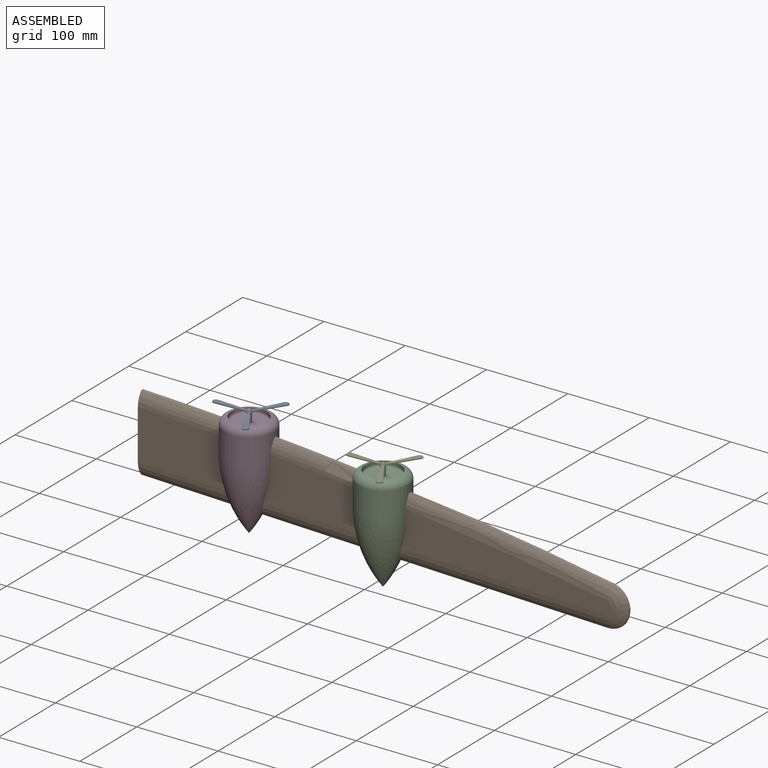
[diagram: assembled view]
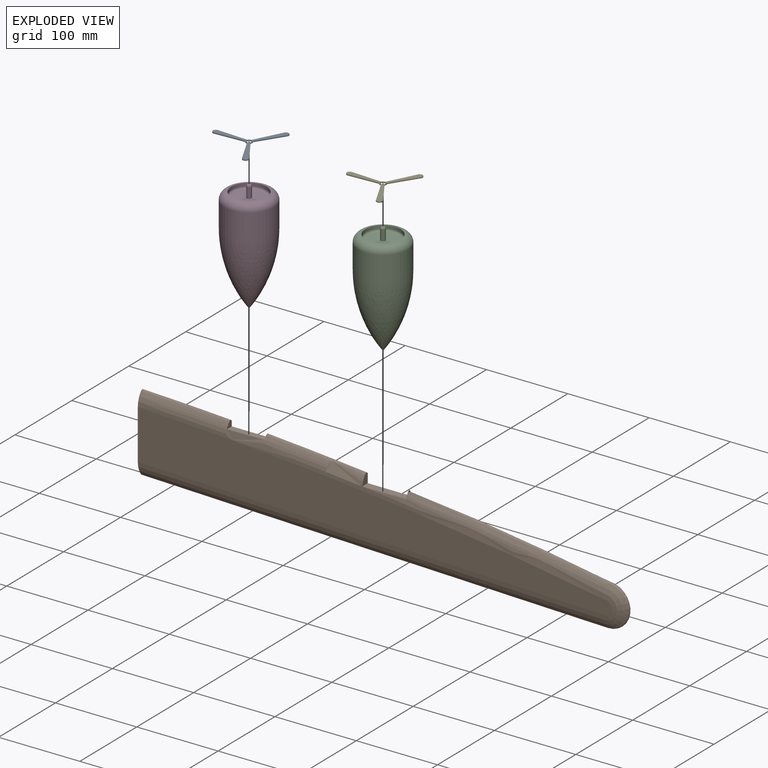
[diagram: exploded view]
GUIDED TOUR — MATED ASSEMBLY (Onshape document 35a7847450e6c58286d9a564, AutoMate assembly 35a7847450e6c58286d9a564_f1da691e49adcad1777eb4e6_c5357b12f680eb06c44becf0_default)

This assembly has 5 components, labeled P0..P4 below (a component is one placed occurrence of a part; the same part can appear more than once), held together by 5 mates. A mate is a constraint between two components; its type names the relative motion it leaves free:
  FASTENED — locks the two components together rigidly (no relative motion),
  PARALLEL — keeps the two listed directions parallel.
Axis/direction vectors are unit vectors and 'through' points are millimeter coordinates, both in the assembly's world frame.

MATES
  1. FASTENED "Fastened 2": P4 <-> P2, direction (0.000, 0.000, 1.000) through (-77.01, -0.17, 166.72) mm
  2. PARALLEL "Parallel 1": P3 <-> P1, direction (0.000, 0.000, 1.000) through (-243.17, 1.83, 168.51) mm
  3. PARALLEL "Parallel 2": P3 <-> P1, direction (0.000, 0.000, 1.000) through (-243.17, 1.83, 165.97) mm
  4. FASTENED "Fastened 1": P3 <-> P0, direction (0.000, 0.000, 1.000) through (-243.17, 1.83, 181.21) mm
  5. PARALLEL "Parallel 3": P2 <-> P1, direction (0.000, 0.000, 1.000) through (-77.01, -0.17, 151.48) mm

ASSEMBLY ORDER
  1. P1 — the base component [order heuristic]
  2. P2 — core [order heuristic]
  3. P3 — core [order heuristic]
  4. P4 [order verified]
  5. P0 [order verified]
(P4 verified with a relaxed clearance tolerance: the source model stores slight part interference there.)
Order-tag legend:
  [order verified] — this step's position reverses a verified removal order: the component was checked to insert without passing through the ones already placed.
  [order heuristic] — the first 3 components form the assembly's core: parts whose collision-free extraction could not be verified, listed in mate-graph order.

Of the 5 components, 3 carry the full construction recipe — the FeatureScript program that regenerates the part's solid from scratch; the rest are supplied as boundary geometry only.
Each toured component is shown spotlighted twice — in the assembled view, then in the exploded view, where a leader line traces a displaced component back to its assembled socket (saturated green if recipe-attached, orange if geometry-only; every other component desaturated gray) — followed by its recipe or geometry summary and the mates that hold it.
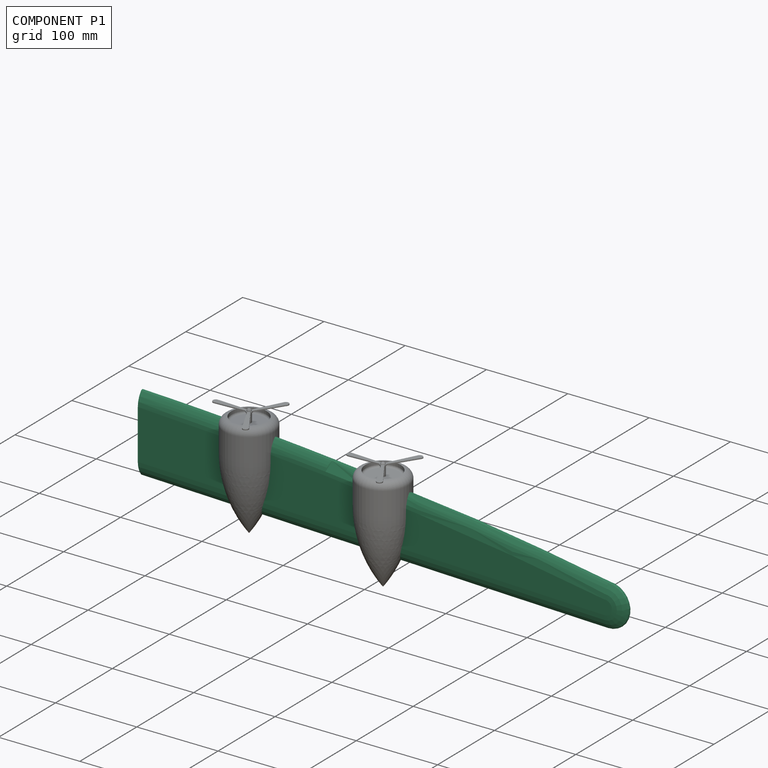
[diagram: component P1 — assembled]
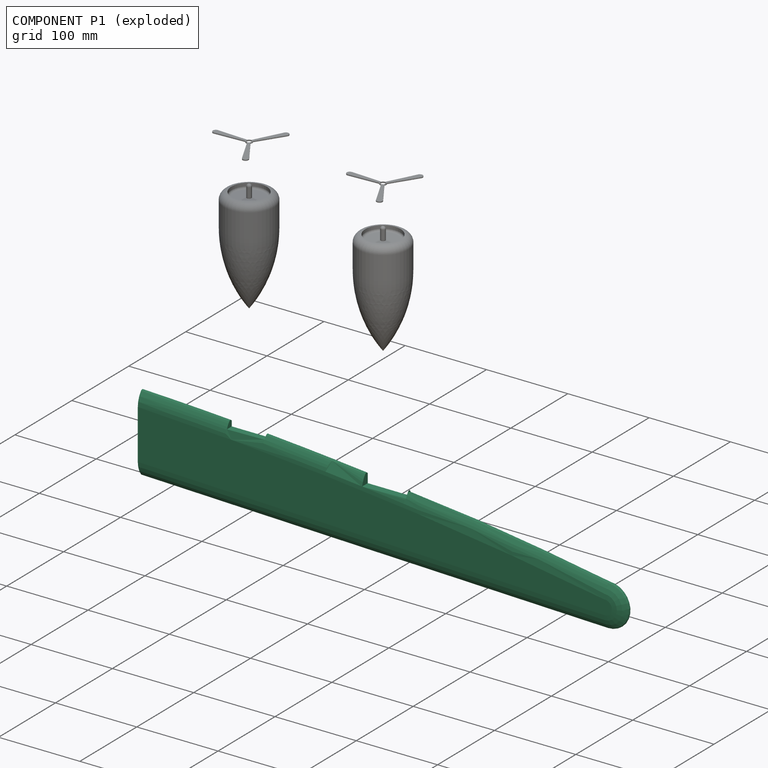
[diagram: component P1 — exploded]
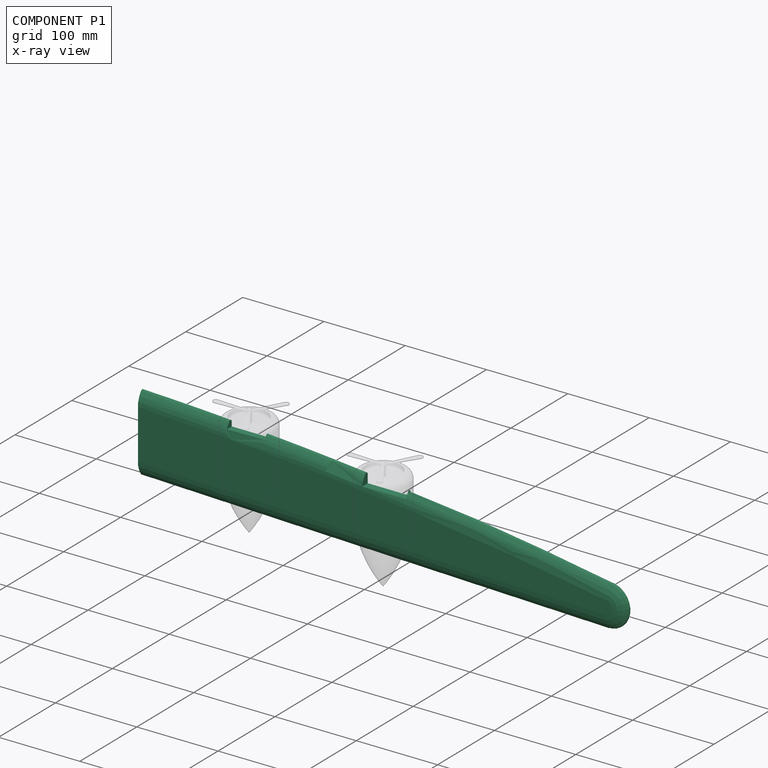
[diagram: component P1 — x-ray view]
COMPONENT P1 — recipe-attached (CADFS 00883519, mesh-verified: the recipe's output STEP matches this component's geometry to below the mesh-comparison resolution (tessellation chordal tolerance ~0.916 mm)).
Held by: PARALLEL mate "Parallel 1" to P3; PARALLEL mate "Parallel 2" to P3; PARALLEL mate "Parallel 3" to P2.
Construction recipe (FeatureScript — the CAD program that rebuilds this solid; sketch coordinates are in the units given by the * unit suffixes, e.g. mm):

FeatureScript 1511;
import(path : "onshape/std/geometry.fs", version : "1511.0");
import(path : "onshape/std/common.fs", version : "1511.0");
const mm = millimeter;
const VERTEX = EntityType.VERTEX;
const EDGE = EntityType.EDGE;
const FACE = EntityType.FACE;
const BODY = EntityType.BODY;
function v(x, y){return vector(x, y);}
function OD(order){return orderDisambiguation(order);}
function OSD(set){return originalSetDisambiguation(set);}
function TD(topology){return topologyDisambiguation(topology);}
function TDD(query){return trueDependencyDisambiguation(query);}
function sQuery(a, b, c) {return sketchEntityQuery(a, b, c);}

annotation { "Feature Type Name" : "Feature", "Feature Type Description" : "" }
export const myFeature = defineFeature(function(context is Context, id is Id, definition is map)
    precondition{}
    {
        {
            var Q0;
            Q0=qCreatedBy(makeId("Front.planeOp"),FACE);
            var sketch = newSketch(context, id + "F0", { "sketchPlane" : qUnion([Q0])});
            skPoint(sketch, "E0.start.orphan", {"position": v(0, -101.6) * mm});
            skLineSegment(sketch, "E1", {"start": v(0, -101.6) * mm, "end": v(0, 0) * mm});
            skLineSegment(sketch, "E2", {"start": v(0, -101.6) * mm, "end": v(573.46, -118.61) * mm});
            skArc(sketch, "E3", {"start": v(575.2, -60.32) * mm, "mid": v(288.63, -20.27) * mm, "end": v(0, 0) * mm});
            skArc(sketch, "E4", {"start": v(573.46, -118.61) * mm, "mid": v(603.47, -90.33) * mm, "end": v(575.2, -60.32) * mm});
            skSolve(sketch);
        }
        {
            var Q0;
            Q0 = qSketchRegion(id + "F0", true);
            extrude(context, id + "F1", {"entities" : qUnion([Q0]), "depth" : 10.16 * mm, "offsetDistance" : 25.4 * mm});
        }
        {
            var Q0;
            Q0=makeQuery(id+"F1.opExtrude","CAP_EDGE",EDGE,{"disambiguationData":[OSD([sQuery(id+"F0.wireOp",EDGE,"E3")])],"isStart":false});
            var Q1;
            Q1=makeQuery(id+"F1.opExtrude","CAP_EDGE",EDGE,{"disambiguationData":[OSD([sQuery(id+"F0.wireOp",EDGE,"E4")])],"isStart":false});
            var Q2;
            Q2=makeQuery(id+"F1.opExtrude","CAP_EDGE",EDGE,{"disambiguationData":[OSD([sQuery(id+"F0.wireOp",EDGE,"E2")])],"isStart":false});
            fillet(context, id + "F2", {"entities" : qUnion([Q0, Q1, Q2]), "radius" : 25.4 * mm, "tangentPropagation" : true, "allowEdgeOverflow" : false});
        }
        {
            var Q0;
            {var subQ0=sQuery(id+"F0.wireOp",EDGE,"E2");Q0=makeQuery(id+"F2.opFillet","BLEND_EDGE",EDGE,{"blendedFrom":[makeQuery(id+"F1.opExtrude","CAP_EDGE",EDGE,{"disambiguationData":[OSD([subQ0])],"isStart":false}),makeQuery(id+"F1.opExtrude","CAP_FACE",FACE,{"disambiguationData":[OSD([sQuery(id+"F0.wireOp",EDGE,"E1"),subQ0,sQuery(id+"F0.wireOp",EDGE,"E3"),sQuery(id+"F0.wireOp",EDGE,"E4")])],"isStart":true})],"blendedInto":[makeQuery(id+"F1.opExtrude","CAP_FACE",FACE,{"disambiguationData":[OSD([sQuery(id+"F0.wireOp",EDGE,"E1"),subQ0,sQuery(id+"F0.wireOp",EDGE,"E3"),sQuery(id+"F0.wireOp",EDGE,"E4")])],"isStart":true})]});}
            var Q1;
            {var subQ0=sQuery(id+"F0.wireOp",EDGE,"E4");Q1=makeQuery(id+"F2.opFillet","BLEND_EDGE",EDGE,{"blendedFrom":[makeQuery(id+"F1.opExtrude","CAP_EDGE",EDGE,{"disambiguationData":[OSD([subQ0])],"isStart":false}),makeQuery(id+"F1.opExtrude","CAP_FACE",FACE,{"disambiguationData":[OSD([sQuery(id+"F0.wireOp",EDGE,"E1"),sQuery(id+"F0.wireOp",EDGE,"E2"),sQuery(id+"F0.wireOp",EDGE,"E3"),subQ0])],"isStart":true})],"blendedInto":[makeQuery(id+"F1.opExtrude","CAP_FACE",FACE,{"disambiguationData":[OSD([sQuery(id+"F0.wireOp",EDGE,"E1"),sQuery(id+"F0.wireOp",EDGE,"E2"),sQuery(id+"F0.wireOp",EDGE,"E3"),subQ0])],"isStart":true})]});}
            var Q2;
            {var subQ0=sQuery(id+"F0.wireOp",EDGE,"E3");Q2=makeQuery(id+"F2.opFillet","BLEND_EDGE",EDGE,{"blendedFrom":[makeQuery(id+"F1.opExtrude","CAP_EDGE",EDGE,{"disambiguationData":[OSD([subQ0])],"isStart":false}),makeQuery(id+"F1.opExtrude","CAP_FACE",FACE,{"disambiguationData":[OSD([sQuery(id+"F0.wireOp",EDGE,"E1"),sQuery(id+"F0.wireOp",EDGE,"E2"),subQ0,sQuery(id+"F0.wireOp",EDGE,"E4")])],"isStart":true})],"blendedInto":[makeQuery(id+"F1.opExtrude","CAP_FACE",FACE,{"disambiguationData":[OSD([sQuery(id+"F0.wireOp",EDGE,"E1"),sQuery(id+"F0.wireOp",EDGE,"E2"),subQ0,sQuery(id+"F0.wireOp",EDGE,"E4")])],"isStart":true})]});}
            fillet(context, id + "F3", {"entities" : qUnion([Q0, Q1, Q2]), "radius" : 2.54 * mm, "tangentPropagation" : true, "allowEdgeOverflow" : false});
        }
        {
            var Q0;
            Q0=qCreatedBy(makeId("Front.planeOp"),FACE);
            var sketch = newSketch(context, id + "F4", { "sketchPlane" : qUnion([Q0])});
            skLineSegment(sketch, "E5.bottom", {"start": v(108.5, 0) * mm, "end": v(153.84, 0) * mm});
            skLineSegment(sketch, "E5.top", {"start": v(108.5, -16.7) * mm, "end": v(153.84, -16.7) * mm});
            skLineSegment(sketch, "E5.left", {"start": v(108.5, 0) * mm, "end": v(108.5, -16.7) * mm});
            skLineSegment(sketch, "E5.right", {"start": v(153.84, 0) * mm, "end": v(153.84, -16.7) * mm});
            skLineSegment(sketch, "E6.bottom", {"start": v(275.73, -18.84) * mm, "end": v(328.34, -18.84) * mm});
            skLineSegment(sketch, "E6.top", {"start": v(275.73, -35.1) * mm, "end": v(328.34, -35.1) * mm});
            skLineSegment(sketch, "E6.left", {"start": v(275.73, -18.84) * mm, "end": v(275.73, -35.1) * mm});
            skLineSegment(sketch, "E6.right", {"start": v(328.34, -18.84) * mm, "end": v(328.34, -35.1) * mm});
            skSolve(sketch);
        }
        {
            var Q0;
            Q0 = qSketchRegion(id + "F4", true);
            extrude(context, id + "F5", {"entities" : qUnion([Q0]), "operationType" : NewBodyOperationType.REMOVE, "depth" : 25.4 * mm, "offsetDistance" : 25.4 * mm});
        }
    });
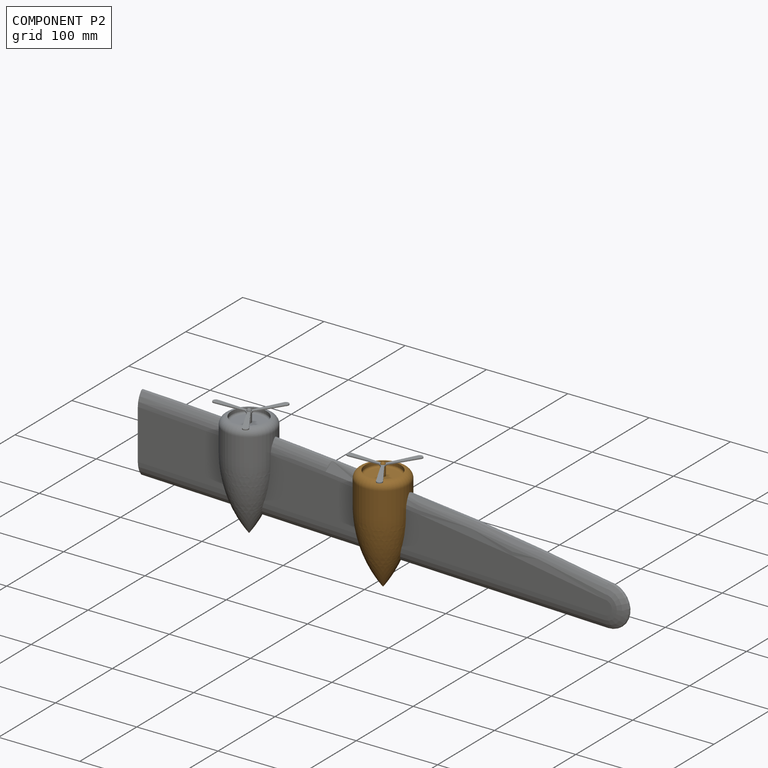
[diagram: component P2 — assembled]
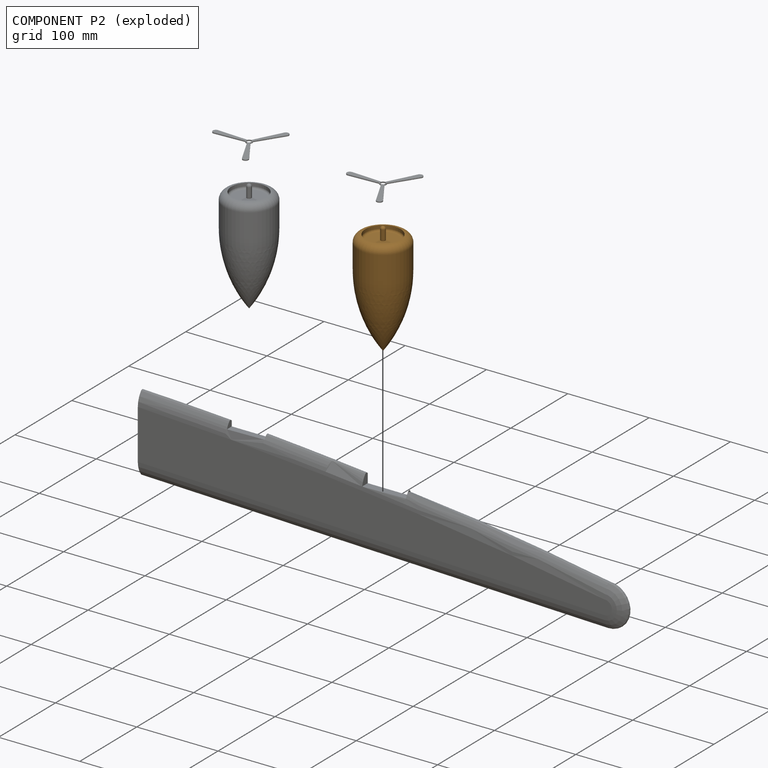
[diagram: component P2 — exploded]
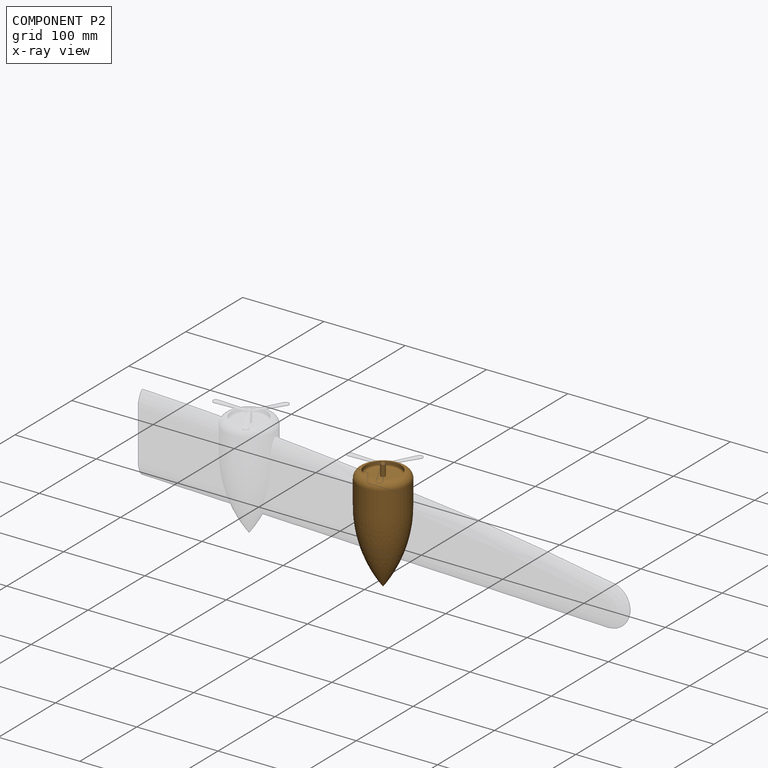
[diagram: component P2 — x-ray view]
COMPONENT P2 — geometry summary (no construction recipe available for this part):
  bounding box: 138.8 x 66.3 x 66.3 mm
  B-rep topology: 1 solid, 11 faces, 39 edges
  volume: 248955 mm^3 (41% of its bounding box)
  symmetry: revolution-symmetric about the y axis through its bounding-box center; mirror-symmetric across its x mid-plane, z mid-plane
Held by: FASTENED mate "Fastened 2" to P4; PARALLEL mate "Parallel 3" to P1.
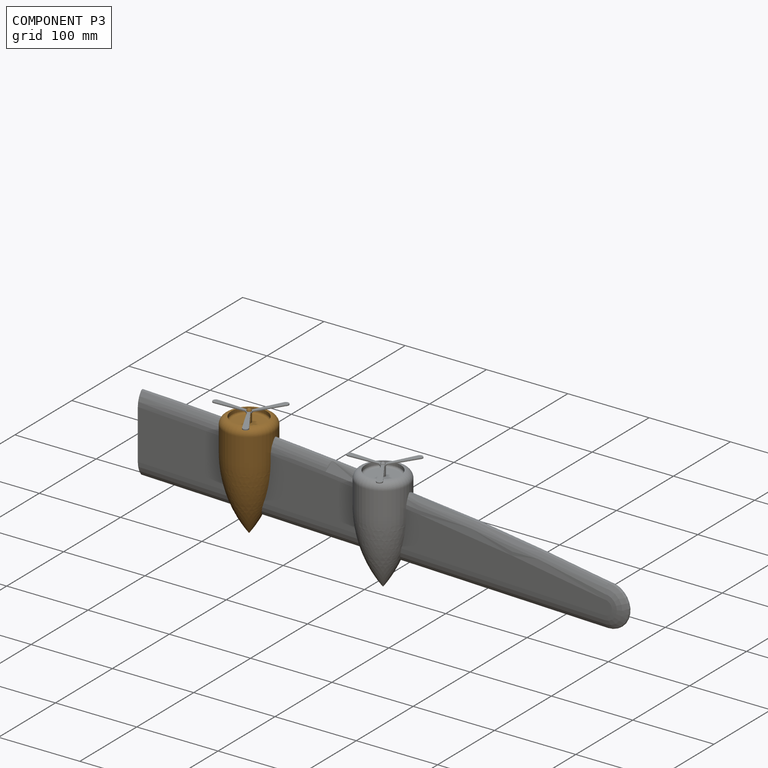
[diagram: component P3 — assembled]
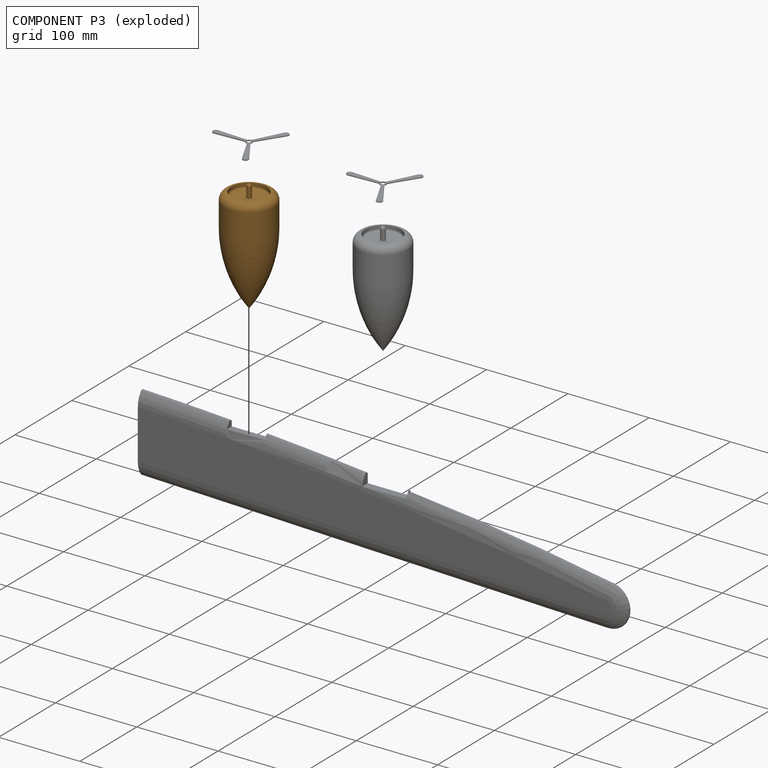
[diagram: component P3 — exploded]
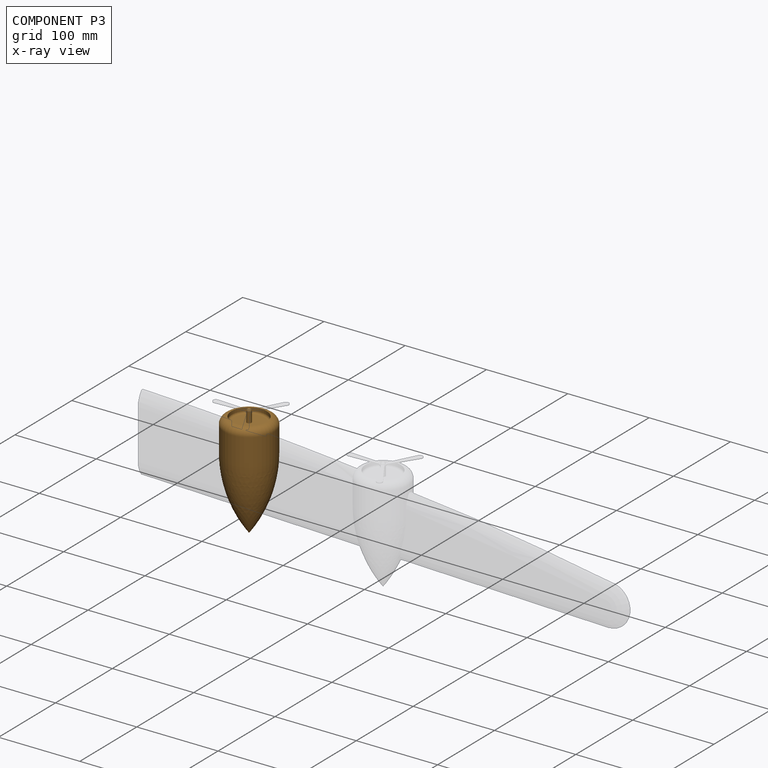
[diagram: component P3 — x-ray view]
COMPONENT P3 — geometry summary (no construction recipe available for this part):
  bounding box: 138.8 x 66.3 x 66.3 mm
  B-rep topology: 1 solid, 11 faces, 39 edges
  volume: 248955 mm^3 (41% of its bounding box)
  symmetry: revolution-symmetric about the y axis through its bounding-box center; mirror-symmetric across its x mid-plane, z mid-plane
Held by: PARALLEL mate "Parallel 1" to P1; PARALLEL mate "Parallel 2" to P1; FASTENED mate "Fastened 1" to P0.
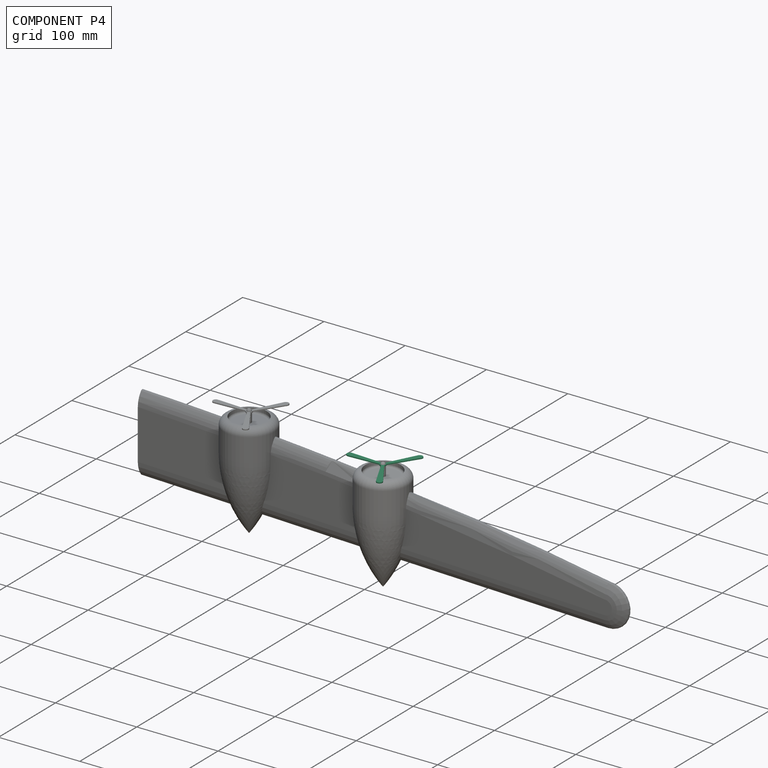
[diagram: component P4 — assembled]
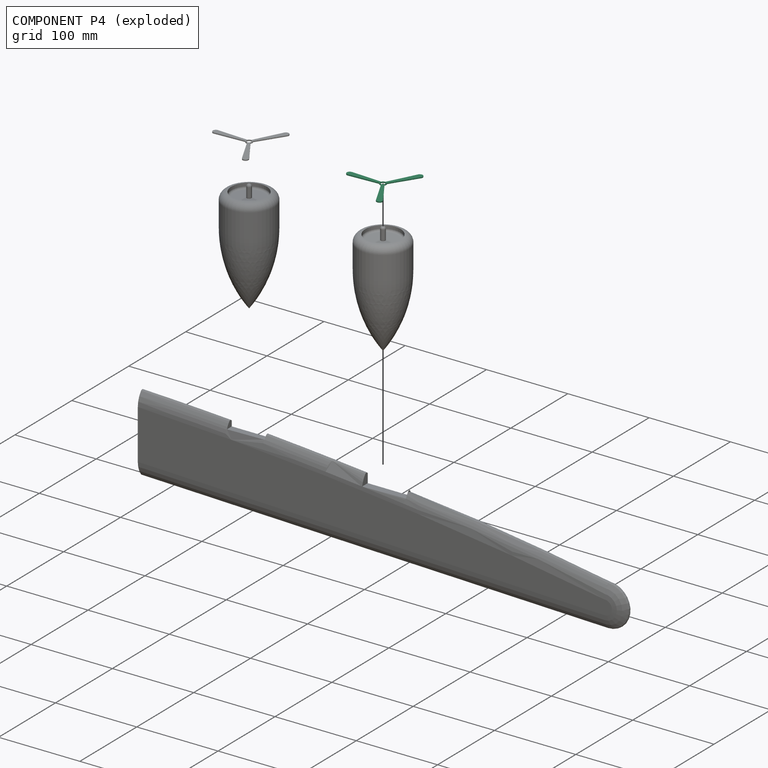
[diagram: component P4 — exploded]
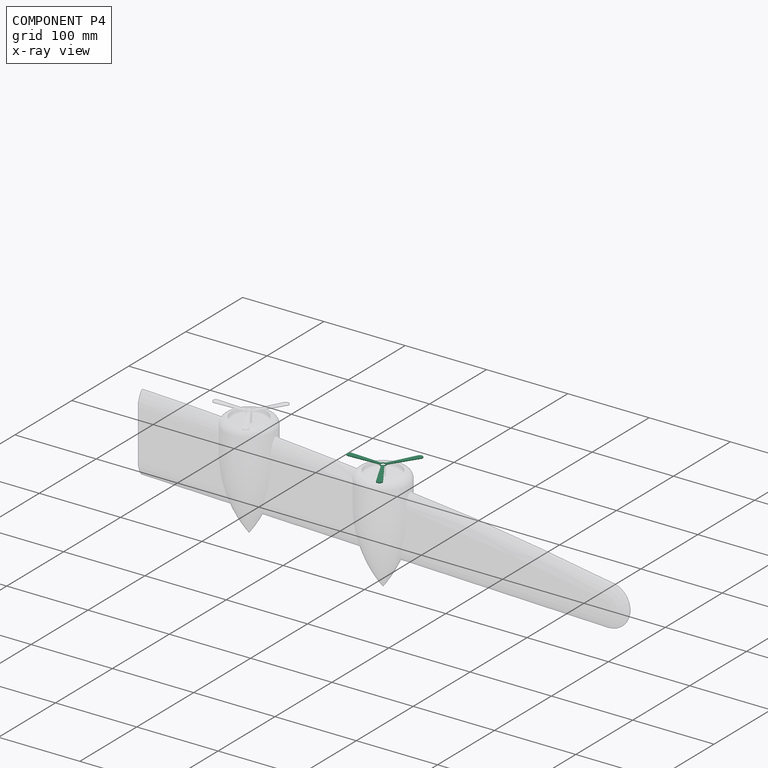
[diagram: component P4 — x-ray view]
COMPONENT P4 — same part as P0 (CADFS 00883520); its construction recipe is shown at P0.
Held by: FASTENED mate "Fastened 2" to P2.
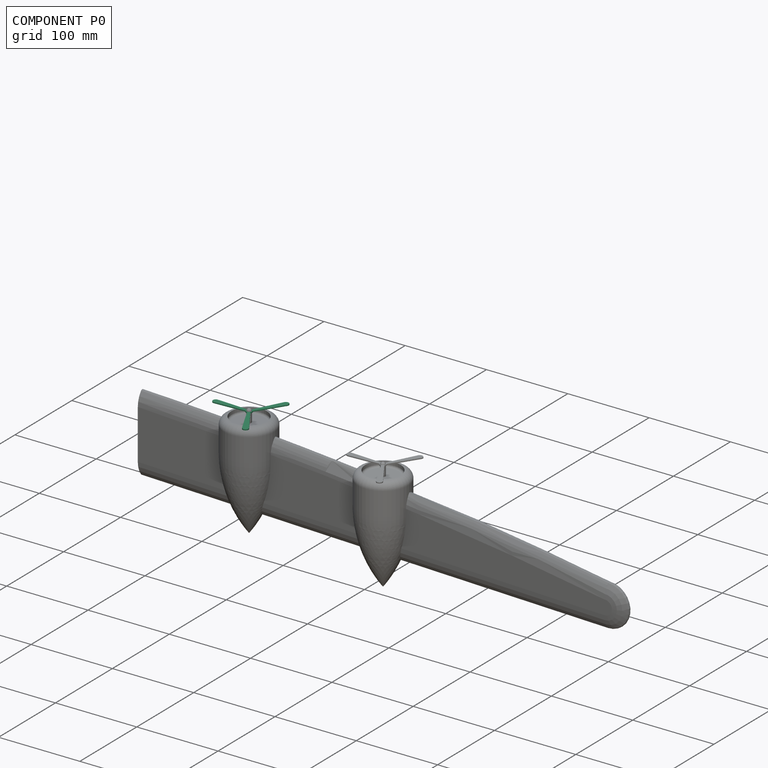
[diagram: component P0 — assembled]
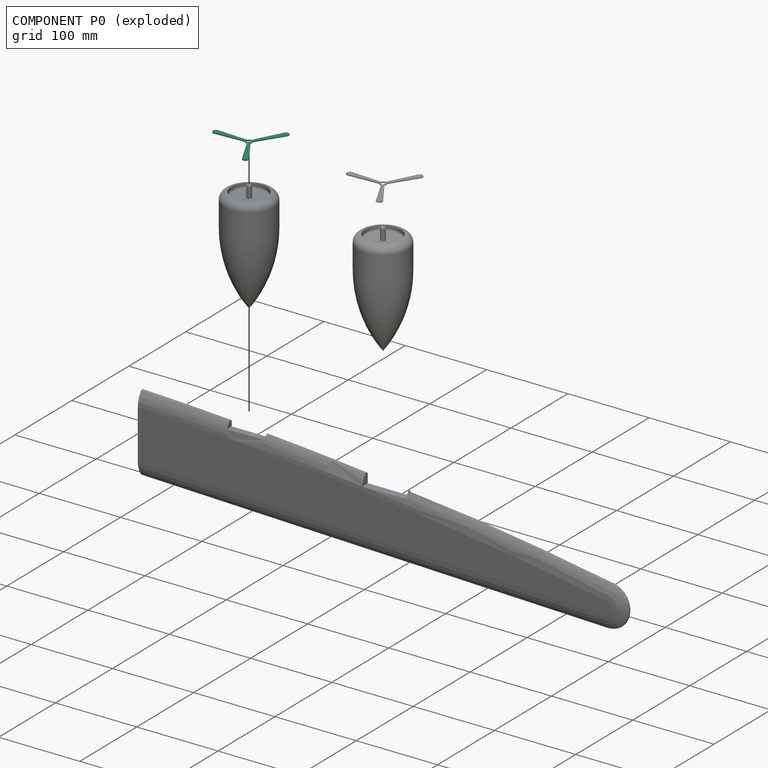
[diagram: component P0 — exploded]
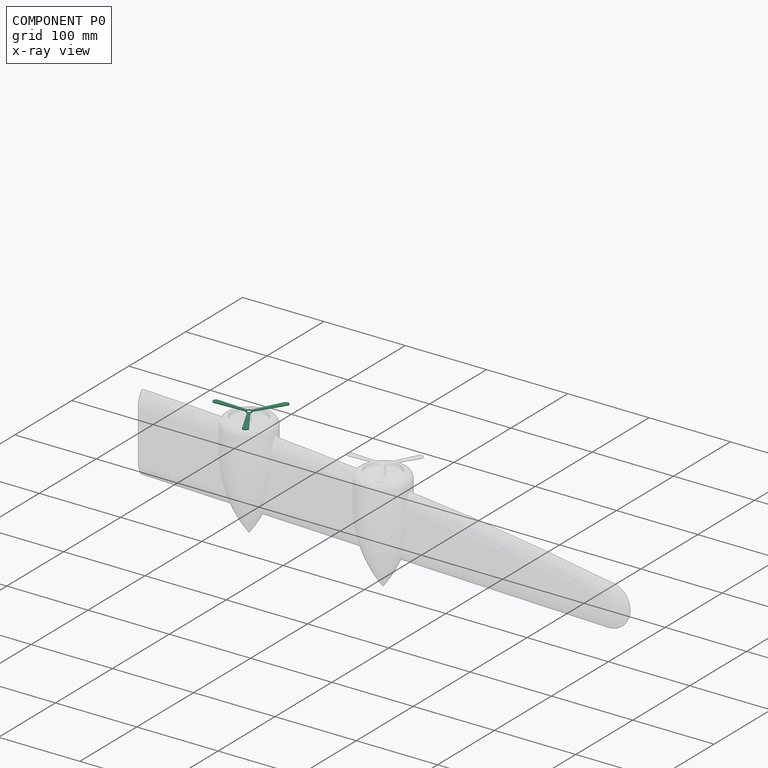
[diagram: component P0 — x-ray view]
COMPONENT P0 — recipe-attached (CADFS 00883520, mesh-verified: the recipe's output STEP matches this component's geometry to below the mesh-comparison resolution (tessellation chordal tolerance ~0.156 mm)).
Held by: FASTENED mate "Fastened 1" to P3.
Construction recipe (FeatureScript — the CAD program that rebuilds this solid; sketch coordinates are in the units given by the * unit suffixes, e.g. mm):

FeatureScript 1511;
import(path : "onshape/std/geometry.fs", version : "1511.0");
import(path : "onshape/std/common.fs", version : "1511.0");
const mm = millimeter;
const VERTEX = EntityType.VERTEX;
const EDGE = EntityType.EDGE;
const FACE = EntityType.FACE;
const BODY = EntityType.BODY;
function v(x, y){return vector(x, y);}
function OD(order){return orderDisambiguation(order);}
function OSD(set){return originalSetDisambiguation(set);}
function TD(topology){return topologyDisambiguation(topology);}
function TDD(query){return trueDependencyDisambiguation(query);}
function sQuery(a, b, c) {return sketchEntityQuery(a, b, c);}

annotation { "Feature Type Name" : "Feature", "Feature Type Description" : "" }
export const myFeature = defineFeature(function(context is Context, id is Id, definition is map)
    precondition{}
    {
        {
            var Q0;
            Q0=qCreatedBy(makeId("Front.planeOp"),FACE);
            var sketch = newSketch(context, id + "F0", { "sketchPlane" : qUnion([Q0])});
            skArc(sketch, "E0", {"start": v(3.81, 0) * mm, "mid": v(3.65, 1.1) * mm, "end": v(3.17, 2.12) * mm});
            skLineSegment(sketch, "E1", {"start": v(-3.42, 1.69) * mm, "end": v(-40.73, 3.6) * mm});
            skLineSegment(sketch, "E2.MirrorCS", {"start": v(-3.42, -1.69) * mm, "end": v(-40.73, -3.6) * mm});
            skArc(sketch, "E3.MirrorCS", {"start": v(3.81, 0) * mm, "mid": v(3.65, -1.1) * mm, "end": v(3.17, -2.12) * mm});
            skArc(sketch, "E4", {"start": v(-40.73, 3.6) * mm, "mid": v(-44.53, 0) * mm, "end": v(-40.73, -3.6) * mm});
            skLineSegment(sketch, "E5.1.0", {"start": v(0.25, -3.8) * mm, "end": v(17.25, -37.08) * mm});
            skLineSegment(sketch, "E5.1.1", {"start": v(3.17, -2.12) * mm, "end": v(23.49, -33.48) * mm});
            skArc(sketch, "E5.1.2", {"start": v(17.25, -37.08) * mm, "mid": v(22.26, -38.56) * mm, "end": v(23.49, -33.48) * mm});
            skLineSegment(sketch, "E5.2.0", {"start": v(3.17, 2.12) * mm, "end": v(23.49, 33.48) * mm});
            skLineSegment(sketch, "E5.2.1", {"start": v(0.25, 3.8) * mm, "end": v(17.25, 37.08) * mm});
            skArc(sketch, "E5.2.2", {"start": v(23.49, 33.48) * mm, "mid": v(22.26, 38.56) * mm, "end": v(17.25, 37.08) * mm});
            skArc(sketch, "E6.trimOffspring", {"start": v(0.25, 3.8) * mm, "mid": v(-1.9, 3.3) * mm, "end": v(-3.42, 1.69) * mm});
            skArc(sketch, "E7.trimOffspring", {"start": v(0.25, -3.8) * mm, "mid": v(-1.9, -3.3) * mm, "end": v(-3.42, -1.69) * mm});
            skSolve(sketch);
        }
        {
            var Q0;
            Q0 = qSketchRegion(id + "F0", true);
            extrude(context, id + "F1", {"entities" : qUnion([Q0]), "depth" : 1.27 * mm, "offsetDistance" : 25.4 * mm});
        }
        {
            var Q0;
            Q0=makeQuery(id+"F1.opExtrude","CAP_FACE",FACE,{"disambiguationData":[OSD([sQuery(id+"F0.wireOp",EDGE,"E0"),sQuery(id+"F0.wireOp",EDGE,"E1"),sQuery(id+"F0.wireOp",EDGE,"E2.MirrorCS"),sQuery(id+"F0.wireOp",EDGE,"E3.MirrorCS"),sQuery(id+"F0.wireOp",EDGE,"E4"),sQuery(id+"F0.wireOp",EDGE,"E5.1.0"),sQuery(id+"F0.wireOp",EDGE,"E5.1.1"),sQuery(id+"F0.wireOp",EDGE,"E5.1.2"),sQuery(id+"F0.wireOp",EDGE,"E5.2.0"),sQuery(id+"F0.wireOp",EDGE,"E5.2.1"),sQuery(id+"F0.wireOp",EDGE,"E5.2.2"),sQuery(id+"F0.wireOp",EDGE,"E6.trimOffspring"),sQuery(id+"F0.wireOp",EDGE,"E7.trimOffspring")])],"isStart":false});
            var sketch = newSketch(context, id + "F2", { "sketchPlane" : qUnion([Q0])});
            skCircle(sketch, "E8", {"center": v(0, 0) * mm, "radius": 2.9 * mm});
            skSolve(sketch);
        }
        {
            var Q0;
            Q0 = qSketchRegion(id + "F2", true);
            extrude(context, id + "F3", {"entities" : qUnion([Q0]), "operationType" : NewBodyOperationType.REMOVE, "oppositeDirection" : true, "depth" : 25.4 * mm, "offsetDistance" : 25.4 * mm});
        }
    });
PROVENANCE & LICENSES
Assembly (occurrences, transforms, mates, per-part STEP geometry): AutoMate dataset, Zenodo record 7776208, CC0.
Construction recipes: CADFS (HuggingFace VladPyatov/CADFS, CC-BY-4.0, layered over the ABC dataset), FeatureScript reconstruction programs keyed by ABC model id.
Join: ABC meta listings map ABC model id -> Onshape documentId; within a shared document, parts are matched by geometric signature (bounding-box dims + volume at 0.1% relative tolerance, exact B-rep face/solid counts).
Verification: 3 of this assembly's 5 components carry a recipe attachment, and every attachment is mesh-verified: the CADFS STEP and the AutoMate member STEP were compared as meshes in their shared local frame (symmetric sampled-point-to-mesh distance); worst across the 3 attachments: below the mesh-comparison resolution (tessellation chordal tolerance ~0.916 mm) on a 610 mm part.
Renders: orthographic iso camera (az 35 / el 25); the floor grid conveys scale (grid pitch printed in each image; no ruler). In the exploded view each component is displaced by its stored offset vector: the offsets alone carry the explosion direction (mate normal/axis signs are not orientation cues and do not encode it), and separation distances are assigned per mate-chain, not proportionally to assembly-order depth.
